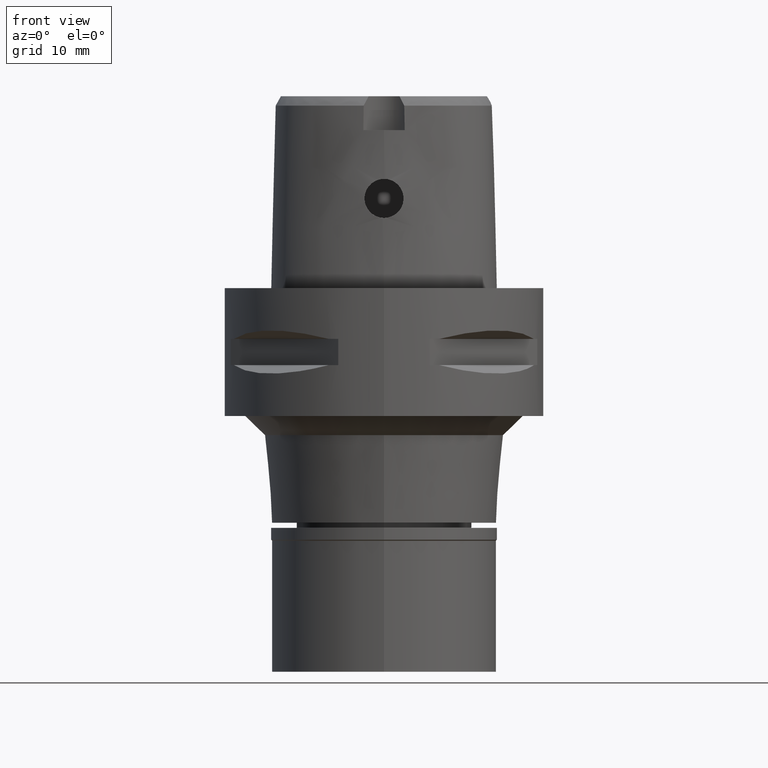
[diagram: clean part render]
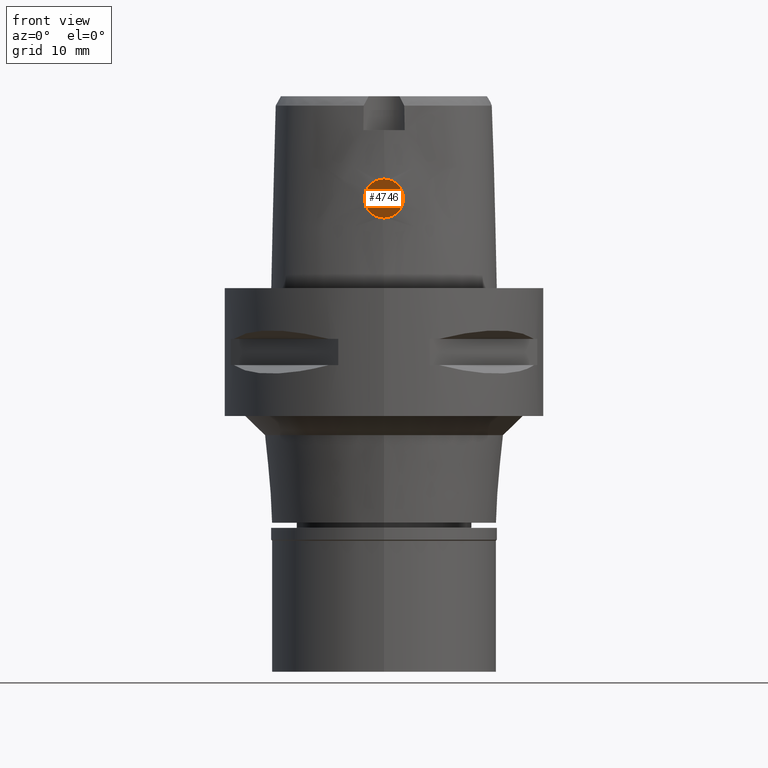
[diagram: same view with one face highlighted and labeled with its STEP entity id]
A machine part, front view. The second image highlights one B-rep face of the part: STEP entity #4746.
In plain terms, the highlighted planar face has unit normal (0, 1, 0).
Its self-contained STEP definition (entity closure, byte-faithful):
#263 = DIRECTION ( 'NONE',  ( 1.000000000000000000, 0.0000000000000000000, 0.0000000000000000000 ) ) ;
#336 = DIRECTION ( 'NONE',  ( 0.0000000000000000000, 1.000000000000000000, 0.0000000000000000000 ) ) ;
#437 = CIRCLE ( 'NONE', #4597, 3.050000000000000711 ) ;
#518 = VERTEX_POINT ( 'NONE', #1234 ) ;
#700 = CARTESIAN_POINT ( 'NONE',  ( 0.0000000000000000000, 14.00000000000000000, 10.94999999999999929 ) ) ;
#750 = AXIS2_PLACEMENT_3D ( 'NONE', #1133, #336, #4052 ) ;
#895 = EDGE_CURVE ( 'NONE', #518, #1913, #2229, .T. ) ;
#1116 = ORIENTED_EDGE ( 'NONE', *, *, #895, .F. ) ;
#1133 = CARTESIAN_POINT ( 'NONE',  ( 0.0000000000000000000, 14.00000000000000000, 14.00000000000000000 ) ) ;
#1234 = CARTESIAN_POINT ( 'NONE',  ( 0.0000000000000000000, 14.00000000000000000, 17.05000000000000071 ) ) ;
#1913 = VERTEX_POINT ( 'NONE', #700 ) ;
#2229 = CIRCLE ( 'NONE', #750, 3.049999999999998934 ) ;
#2441 = AXIS2_PLACEMENT_3D ( 'NONE', #3942, #2506, #263 ) ;
#2506 = DIRECTION ( 'NONE',  ( -0.0000000000000000000, 1.000000000000000000, 0.0000000000000000000 ) ) ;
#2581 = CARTESIAN_POINT ( 'NONE',  ( 0.0000000000000000000, 14.00000000000000000, 14.00000000000000000 ) ) ;
#2608 = DIRECTION ( 'NONE',  ( 0.0000000000000000000, 0.0000000000000000000, -1.000000000000000000 ) ) ;
#2875 = PLANE ( 'NONE',  #2441 ) ;
#3569 = EDGE_LOOP ( 'NONE', ( #1116, #4285 ) ) ;
#3942 = CARTESIAN_POINT ( 'NONE',  ( 0.0000000000000000000, 14.00000000000000000, 0.0000000000000000000 ) ) ;
#4052 = DIRECTION ( 'NONE',  ( 0.0000000000000000000, 0.0000000000000000000, 1.000000000000000000 ) ) ;
#4116 = DIRECTION ( 'NONE',  ( 0.0000000000000000000, 1.000000000000000000, 0.0000000000000000000 ) ) ;
#4268 = EDGE_CURVE ( 'NONE', #1913, #518, #437, .T. ) ;
#4285 = ORIENTED_EDGE ( 'NONE', *, *, #4268, .F. ) ;
#4597 = AXIS2_PLACEMENT_3D ( 'NONE', #2581, #4116, #2608 ) ;
#4685 = FACE_OUTER_BOUND ( 'NONE', #3569, .T. ) ;
#4746 = ADVANCED_FACE ( 'NONE', ( #4685 ), #2875, .F. ) ;